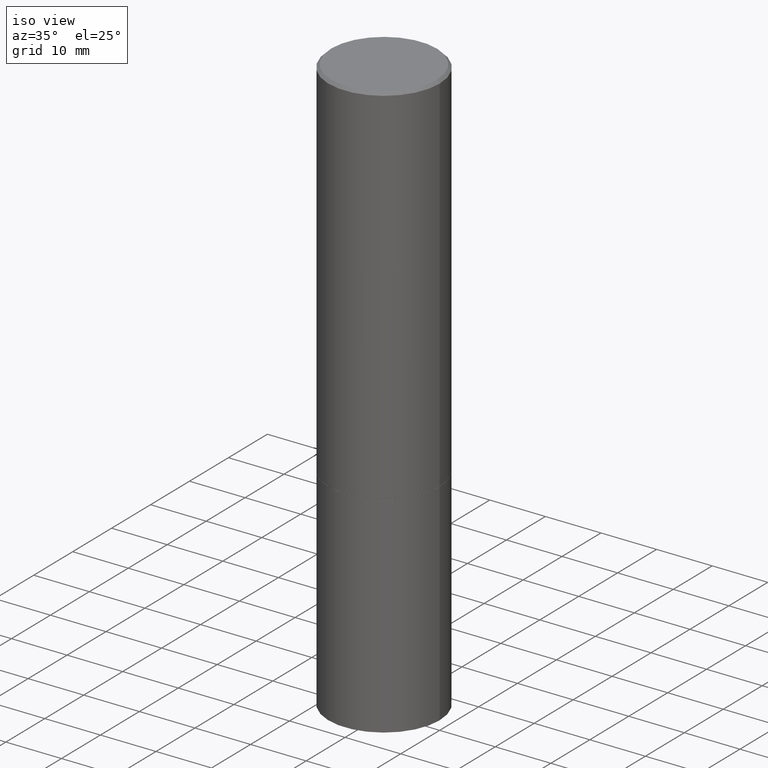
[diagram: clean part render]
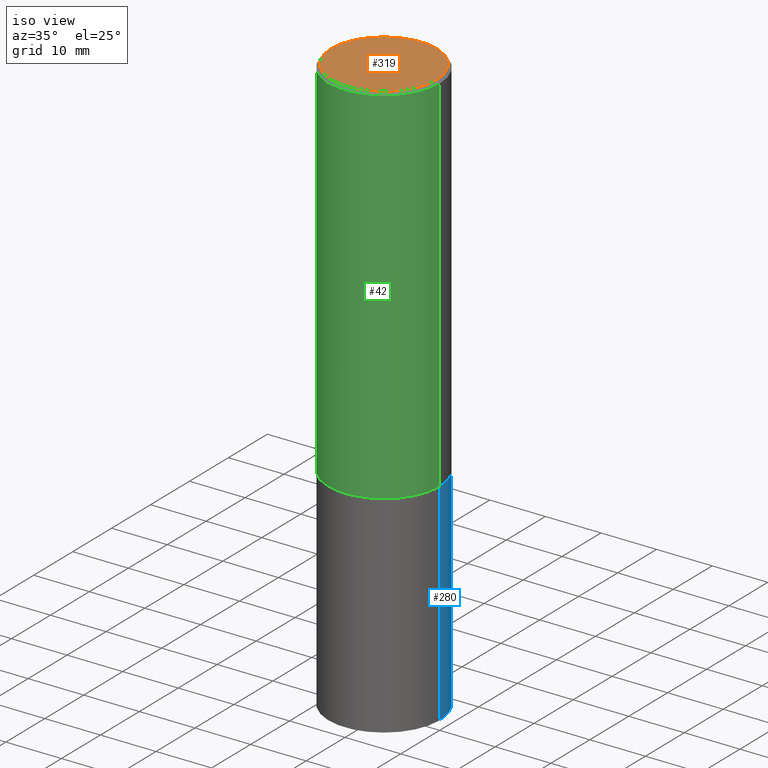
[diagram: same view with three faces highlighted in distinct colors, each labeled with its STEP entity id]
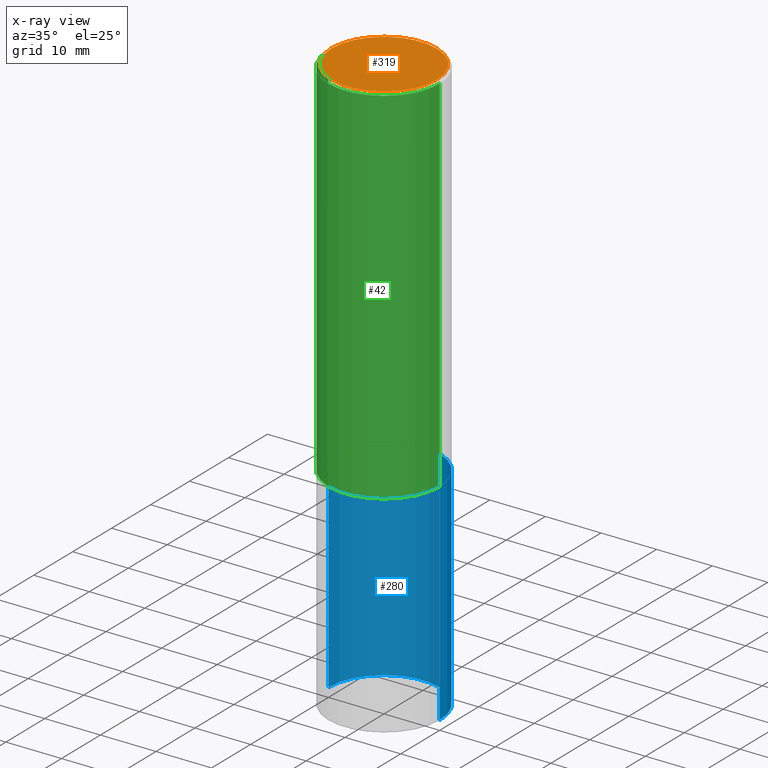
[diagram: x-ray of the same camera — body ghosted, the three highlighted faces saturated]
A machine part, iso view with three faces highlighted in distinct colors.
The next image is the same camera in x-ray (body ghosted, the three faces saturated) — at least one of them is partly hidden behind the body in this view.
Their STEP definitions:

[orange] entity #319 — the highlighted planar face has unit normal (0, -0, -1).
#2 = AXIS2_PLACEMENT_3D ( 'NONE', #294, #260, #291 ) ;
#18 = CIRCLE ( 'NONE', #63, 0.3736999999999996436 ) ;
#37 = CARTESIAN_POINT ( 'NONE',  ( -2.087702828670439639E-46, 2.980686340760894400E-32, 8.537024980200822558E-18 ) ) ;
#50 = CARTESIAN_POINT ( 'NONE',  ( -0.3736999999999996436, 2.644447966039786297E-15, 8.537024980182450727E-18 ) ) ;
#51 = DIRECTION ( 'NONE',  ( -1.000000000000000000, 6.982962677686265922E-15, -4.876176775795935793E-29 ) ) ;
#63 = AXIS2_PLACEMENT_3D ( 'NONE', #37, #128, #124 ) ;
#67 = CARTESIAN_POINT ( 'NONE',  ( 0.3736999999999996436, -2.667287895133365992E-15, 8.537024980219274507E-18 ) ) ;
#71 = AXIS2_PLACEMENT_3D ( 'NONE', #165, #326, #51 ) ;
#85 = VERTEX_POINT ( 'NONE', #50 ) ;
#103 = PLANE ( 'NONE',  #71 ) ;
#115 = EDGE_CURVE ( 'NONE', #196, #85, #365, .T. ) ;
#124 = DIRECTION ( 'NONE',  ( 1.000000000000000000, -6.982962677686266711E-15, 4.876212485538980163E-29 ) ) ;
#128 = DIRECTION ( 'NONE',  ( -2.445468806185136597E-29, 3.491481338843145583E-15, 1.000000000000000000 ) ) ;
#165 = CARTESIAN_POINT ( 'NONE',  ( 2.609533152651354648E-15, 0.3736999999999996436, -1.300498063835581828E-15 ) ) ;
#187 = FACE_OUTER_BOUND ( 'NONE', #289, .T. ) ;
#190 = EDGE_CURVE ( 'NONE', #85, #196, #18, .T. ) ;
#196 = VERTEX_POINT ( 'NONE', #67 ) ;
#229 = ORIENTED_EDGE ( 'NONE', *, *, #190, .T. ) ;
#260 = DIRECTION ( 'NONE',  ( -2.445468806185136597E-29, 3.491481338843145583E-15, 1.000000000000000000 ) ) ;
#289 = EDGE_LOOP ( 'NONE', ( #229, #297 ) ) ;
#291 = DIRECTION ( 'NONE',  ( 1.000000000000000000, -6.982962677686266711E-15, 4.876212485538980163E-29 ) ) ;
#294 = CARTESIAN_POINT ( 'NONE',  ( -2.087702828670439639E-46, 2.980686340760894400E-32, 8.537024980200822558E-18 ) ) ;
#297 = ORIENTED_EDGE ( 'NONE', *, *, #115, .T. ) ;
#319 = ADVANCED_FACE ( 'NONE', ( #187 ), #103, .F. ) ;
#326 = DIRECTION ( 'NONE',  ( 2.438088387897960049E-29, -3.491481338843145188E-15, -1.000000000000000000 ) ) ;
#365 = CIRCLE ( 'NONE', #2, 0.3736999999999996436 ) ;

[blue] entity #280 — the highlighted cylindrical surface (partial cylindrical patch) has radius 10 mm, axis along (-0, 0, 1).
#3 = EDGE_CURVE ( 'NONE', #96, #55, #353, .T. ) ;
#32 = ORIENTED_EDGE ( 'NONE', *, *, #189, .T. ) ;
#44 = CARTESIAN_POINT ( 'NONE',  ( -0.3937000000000000499, -8.886660975684131482E-15, -4.094500000000000028 ) ) ;
#55 = VERTEX_POINT ( 'NONE', #134 ) ;
#76 = EDGE_CURVE ( 'NONE', #143, #257, #107, .T. ) ;
#88 = VECTOR ( 'NONE', #130, 39.37007874015748143 ) ;
#96 = VERTEX_POINT ( 'NONE', #44 ) ;
#99 = CARTESIAN_POINT ( 'NONE',  ( 6.354306145991459756E-29, -9.072265110850031044E-15, -2.598400000000000265 ) ) ;
#101 = AXIS2_PLACEMENT_3D ( 'NONE', #99, #346, #264 ) ;
#105 = AXIS2_PLACEMENT_3D ( 'NONE', #206, #121, #324 ) ;
#107 = LINE ( 'NONE', #137, #364 ) ;
#108 = DIRECTION ( 'NONE',  ( -2.445468806185136877E-29, 3.491481338843145188E-15, 1.000000000000000000 ) ) ;
#118 = EDGE_LOOP ( 'NONE', ( #32, #358, #363, #246 ) ) ;
#121 = DIRECTION ( 'NONE',  ( -2.445468806185136597E-29, 3.491481338843145583E-15, 1.000000000000000000 ) ) ;
#130 = DIRECTION ( 'NONE',  ( -2.445468806185136877E-29, 3.491481338843145188E-15, 1.000000000000000000 ) ) ;
#131 = CARTESIAN_POINT ( 'NONE',  ( 0.000000000000000000, 0.000000000000000000, 0.000000000000000000 ) ) ;
#134 = CARTESIAN_POINT ( 'NONE',  ( -0.3937000000000000499, -8.886660975684131482E-15, -2.598400000000000265 ) ) ;
#137 = CARTESIAN_POINT ( 'NONE',  ( 0.3937000000000000499, -2.749192406205083217E-15, 1.919750796630860172E-29 ) ) ;
#143 = VERTEX_POINT ( 'NONE', #150 ) ;
#150 = CARTESIAN_POINT ( 'NONE',  ( 0.3937000000000000499, -1.704506274809834471E-14, -4.094500000000000028 ) ) ;
#162 = CARTESIAN_POINT ( 'NONE',  ( -0.3937000000000000499, 2.797406750687514786E-15, -1.936584745033356735E-29 ) ) ;
#173 = CIRCLE ( 'NONE', #101, 0.3937000000000000499 ) ;
#189 = EDGE_CURVE ( 'NONE', #143, #96, #261, .T. ) ;
#206 = CARTESIAN_POINT ( 'NONE',  ( 1.001297202692504215E-28, -1.429587034189326149E-14, -4.094500000000000028 ) ) ;
#216 = DIRECTION ( 'NONE',  ( 1.000000000000000000, -6.982962677686265922E-15, 4.876176775795935793E-29 ) ) ;
#218 = CYLINDRICAL_SURFACE ( 'NONE', #276, 0.3937000000000000499 ) ;
#246 = ORIENTED_EDGE ( 'NONE', *, *, #76, .F. ) ;
#247 = DIRECTION ( 'NONE',  ( -2.445468806185136597E-29, 3.491481338843145583E-15, 1.000000000000000000 ) ) ;
#252 = EDGE_CURVE ( 'NONE', #257, #55, #173, .T. ) ;
#257 = VERTEX_POINT ( 'NONE', #262 ) ;
#261 = CIRCLE ( 'NONE', #105, 0.3937000000000000499 ) ;
#262 = CARTESIAN_POINT ( 'NONE',  ( 0.3937000000000000499, -1.182145751705511584E-14, -2.598400000000000265 ) ) ;
#264 = DIRECTION ( 'NONE',  ( 1.000000000000000000, -6.982962677686267499E-15, 0.000000000000000000 ) ) ;
#274 = FACE_OUTER_BOUND ( 'NONE', #118, .T. ) ;
#276 = AXIS2_PLACEMENT_3D ( 'NONE', #131, #247, #216 ) ;
#280 = ADVANCED_FACE ( 'NONE', ( #274 ), #218, .T. ) ;
#324 = DIRECTION ( 'NONE',  ( 1.000000000000000000, -6.982962677686267499E-15, 0.000000000000000000 ) ) ;
#346 = DIRECTION ( 'NONE',  ( -2.445468806185136597E-29, 3.491481338843145583E-15, 1.000000000000000000 ) ) ;
#353 = LINE ( 'NONE', #162, #88 ) ;
#358 = ORIENTED_EDGE ( 'NONE', *, *, #3, .T. ) ;
#363 = ORIENTED_EDGE ( 'NONE', *, *, #252, .F. ) ;
#364 = VECTOR ( 'NONE', #108, 39.37007874015748143 ) ;

[green] entity #42 — the highlighted cylindrical surface (partial cylindrical patch) has radius 10 mm, axis along (-0, 0, 1).
#6 = FACE_OUTER_BOUND ( 'NONE', #313, .T. ) ;
#19 = VERTEX_POINT ( 'NONE', #148 ) ;
#26 = VERTEX_POINT ( 'NONE', #263 ) ;
#31 = ORIENTED_EDGE ( 'NONE', *, *, #254, .T. ) ;
#33 = CARTESIAN_POINT ( 'NONE',  ( 6.351860677185276395E-29, -9.068773629511191193E-15, -2.597400000000001263 ) ) ;
#35 = AXIS2_PLACEMENT_3D ( 'NONE', #33, #208, #73 ) ;
#41 = CARTESIAN_POINT ( 'NONE',  ( -0.3936999999999996613, 2.679362779428217552E-15, -0.02000000000000010103 ) ) ;
#42 = ADVANCED_FACE ( 'NONE', ( #6 ), #70, .T. ) ;
#45 = CARTESIAN_POINT ( 'NONE',  ( 0.000000000000000000, 0.000000000000000000, 0.000000000000000000 ) ) ;
#52 = CARTESIAN_POINT ( 'NONE',  ( 4.890937612370298557E-31, -6.982962677686327354E-17, -0.02000000000000010103 ) ) ;
#70 = CYLINDRICAL_SURFACE ( 'NONE', #285, 0.3936999999999998279 ) ;
#73 = DIRECTION ( 'NONE',  ( 1.000000000000000000, -6.982962677686267499E-15, 0.000000000000000000 ) ) ;
#77 = EDGE_CURVE ( 'NONE', #339, #19, #211, .T. ) ;
#123 = EDGE_CURVE ( 'NONE', #26, #19, #151, .T. ) ;
#126 = AXIS2_PLACEMENT_3D ( 'NONE', #52, #159, #303 ) ;
#147 = VECTOR ( 'NONE', #210, 39.37007874015748143 ) ;
#148 = CARTESIAN_POINT ( 'NONE',  ( 0.3936999999999996613, -2.770807688499512973E-15, -0.02000000000000010103 ) ) ;
#151 = LINE ( 'NONE', #293, #167 ) ;
#159 = DIRECTION ( 'NONE',  ( -2.445468806185136597E-29, 3.491481338843145583E-15, 1.000000000000000000 ) ) ;
#167 = VECTOR ( 'NONE', #323, 39.37007874015748143 ) ;
#171 = ORIENTED_EDGE ( 'NONE', *, *, #123, .T. ) ;
#174 = ORIENTED_EDGE ( 'NONE', *, *, #273, .F. ) ;
#194 = DIRECTION ( 'NONE',  ( 1.000000000000000000, -6.982962677686266711E-15, 4.876176775795935793E-29 ) ) ;
#205 = CIRCLE ( 'NONE', #35, 0.3937000000000000499 ) ;
#208 = DIRECTION ( 'NONE',  ( -2.445468806185136597E-29, 3.491481338843145583E-15, 1.000000000000000000 ) ) ;
#210 = DIRECTION ( 'NONE',  ( -2.445468806185136877E-29, 3.491481338843145188E-15, 1.000000000000000000 ) ) ;
#211 = CIRCLE ( 'NONE', #126, 0.3936999999999996613 ) ;
#236 = LINE ( 'NONE', #347, #147 ) ;
#254 = EDGE_CURVE ( 'NONE', #341, #26, #205, .T. ) ;
#259 = ORIENTED_EDGE ( 'NONE', *, *, #77, .F. ) ;
#263 = CARTESIAN_POINT ( 'NONE',  ( 0.3937000000000000499, -1.181796603571627441E-14, -2.597400000000001263 ) ) ;
#273 = EDGE_CURVE ( 'NONE', #341, #339, #236, .T. ) ;
#285 = AXIS2_PLACEMENT_3D ( 'NONE', #45, #334, #194 ) ;
#293 = CARTESIAN_POINT ( 'NONE',  ( 0.3936999999999998279, -2.749192406205082033E-15, 1.919750796630859051E-29 ) ) ;
#303 = DIRECTION ( 'NONE',  ( 1.000000000000000000, -6.982962677686266711E-15, 0.000000000000000000 ) ) ;
#313 = EDGE_LOOP ( 'NONE', ( #174, #31, #171, #259 ) ) ;
#323 = DIRECTION ( 'NONE',  ( -2.445468806185136877E-29, 3.491481338843145188E-15, 1.000000000000000000 ) ) ;
#327 = CARTESIAN_POINT ( 'NONE',  ( -0.3937000000000000499, -1.771894877456511079E-15, -2.597400000000001263 ) ) ;
#334 = DIRECTION ( 'NONE',  ( -2.445468806185136597E-29, 3.491481338843145583E-15, 1.000000000000000000 ) ) ;
#339 = VERTEX_POINT ( 'NONE', #41 ) ;
#341 = VERTEX_POINT ( 'NONE', #327 ) ;
#347 = CARTESIAN_POINT ( 'NONE',  ( -0.3936999999999998279, 2.797406750687513209E-15, -1.936584745033355614E-29 ) ) ;